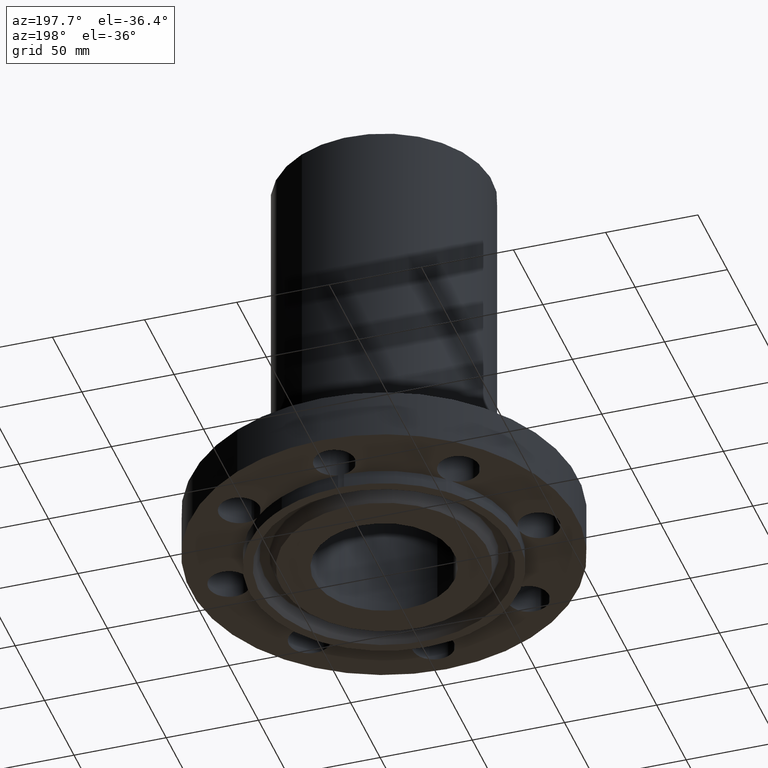
[diagram: clean part render]
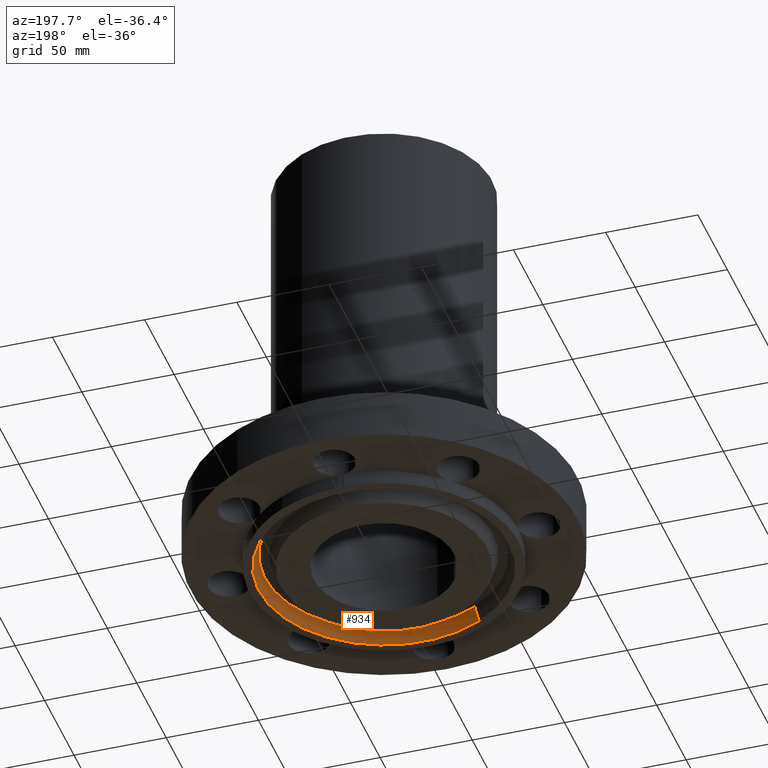
[diagram: same view with one face highlighted and labeled with its STEP entity id]
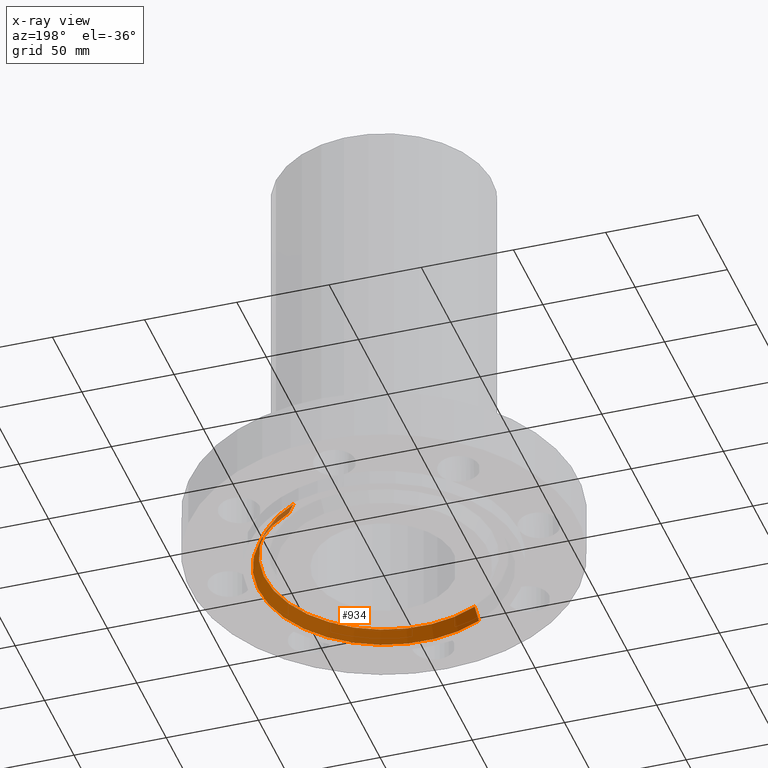
[diagram: x-ray of the same camera — body ghosted, the highlighted face saturated]
A machine part, auxiliary view. The second image highlights one B-rep face of the part: STEP entity #934.
The next image is the same camera in x-ray: the body ghosted, the highlighted face saturated — about 0% of this face is hidden behind the body in this view.
In plain terms, the highlighted conical surface has half-angle 23 deg.
Its self-contained STEP definition (entity closure, byte-faithful):
#586=AXIS2_PLACEMENT_3D('Circle Axis2P3D',#584,#585,$) ;
#896=AXIS2_PLACEMENT_3D('Circle Axis2P3D',#894,#895,$) ;
#909=AXIS2_PLACEMENT_3D('Cone Axis2P3D',#906,#907,#908) ;
#584=CARTESIAN_POINT('Axis2P3D Location',(0.,0.,-0.313000000001)) ;
#588=CARTESIAN_POINT('Vertex',(1.28102503916,2.34490060538,-0.313000000001)) ;
#590=CARTESIAN_POINT('Vertex',(-1.28102503916,-2.34490060538,-0.313000000001)) ;
#872=CARTESIAN_POINT('Vertex',(-1.22117191556,-2.23534019754,-0.0188873350169)) ;
#879=CARTESIAN_POINT('Vertex',(1.22117191556,2.23534019754,-0.0188873350169)) ;
#894=CARTESIAN_POINT('Axis2P3D Location',(0.,0.,-0.0188873350169)) ;
#906=CARTESIAN_POINT('Axis2P3D Location',(0.,0.,-0.0188873350169)) ;
#911=CARTESIAN_POINT('Line Origine',(-1.25109847736,-2.29012040146,-0.165943667509)) ;
#916=CARTESIAN_POINT('Line Origine',(1.25109847736,2.29012040146,-0.165943667509)) ;
#585=DIRECTION('Axis2P3D Direction',(0.,0.,-0.0393700787402)) ;
#895=DIRECTION('Axis2P3D Direction',(0.,0.,-0.0393700787402)) ;
#907=DIRECTION('Axis2P3D Direction',(0.,0.,-0.0393700787402)) ;
#908=DIRECTION('Axis2P3D XDirection',(0.0188750212049,0.0345504945626,0.)) ;
#912=DIRECTION('Vector Direction',(-0.00737505833565,-0.0134999537303,-0.0362403485611)) ;
#917=DIRECTION('Vector Direction',(0.00737505833565,0.0134999537303,-0.0362403485611)) ;
#913=VECTOR('Line Direction',#912,0.0393700787402) ;
#918=VECTOR('Line Direction',#917,0.0393700787402) ;
#929=ORIENTED_EDGE('',*,*,#898,.F.) ;
#930=ORIENTED_EDGE('',*,*,#920,.T.) ;
#931=ORIENTED_EDGE('',*,*,#592,.T.) ;
#932=ORIENTED_EDGE('',*,*,#915,.F.) ;
#934=ADVANCED_FACE('PartBody',(#933),#910,.F.) ;
#587=CIRCLE('generated circle',#586,2.67200000001) ;
#897=CIRCLE('generated circle',#896,2.5471565806) ;
#910=CONICAL_SURFACE('Cone',#909,2.5471565806,0.401425727959) ;
#592=EDGE_CURVE('',#589,#591,#587,.T.) ;
#898=EDGE_CURVE('',#880,#873,#897,.T.) ;
#915=EDGE_CURVE('',#873,#591,#914,.T.) ;
#920=EDGE_CURVE('',#880,#589,#919,.T.) ;
#928=EDGE_LOOP('',(#929,#930,#931,#932)) ;
#933=FACE_OUTER_BOUND('',#928,.T.) ;
#914=LINE('Line',#911,#913) ;
#919=LINE('Line',#916,#918) ;
#589=VERTEX_POINT('',#588) ;
#591=VERTEX_POINT('',#590) ;
#873=VERTEX_POINT('',#872) ;
#880=VERTEX_POINT('',#879) ;